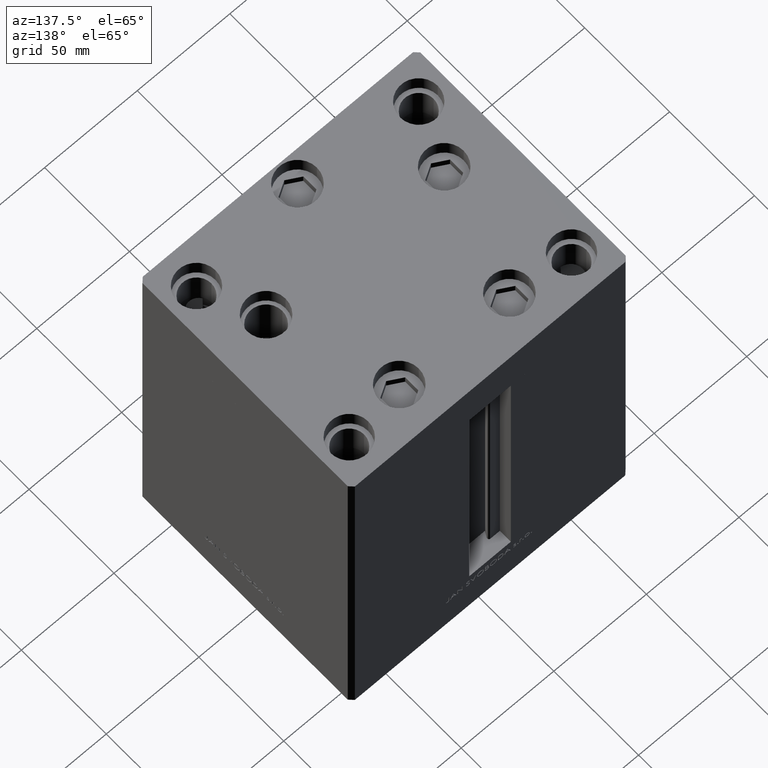
[diagram: clean part render]
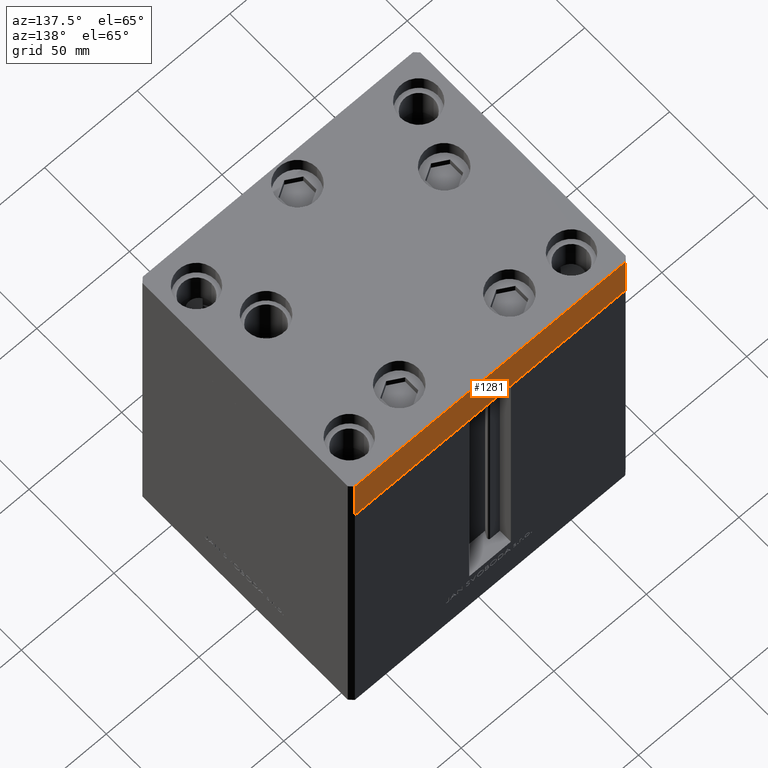
[diagram: same view with one face highlighted and labeled with its STEP entity id]
A machine part, auxiliary view. The second image highlights one B-rep face of the part: STEP entity #1281.
In plain terms, the highlighted planar face has unit normal (-0, 1, 0).
Its self-contained STEP definition (entity closure, byte-faithful):
#1053 = CARTESIAN_POINT ( 'NONE',  ( 72.99999999999992895, 62.50000000000001421, -27.00000000000000000 ) ) ;
#1281 = ADVANCED_FACE ( 'NONE', ( #39674 ), #30789, .T. ) ;
#1303 = DIRECTION ( 'NONE',  ( 0.000000000000000000, 0.000000000000000000, 1.000000000000000000 ) ) ;
#2595 = EDGE_CURVE ( 'NONE', #49244, #8153, #22232, .T. ) ;
#4166 = EDGE_CURVE ( 'NONE', #43103, #49244, #25448, .T. ) ;
#5964 = ORIENTED_EDGE ( 'NONE', *, *, #6052, .T. ) ;
#6052 = EDGE_CURVE ( 'NONE', #43103, #25090, #44548, .T. ) ;
#8153 = VERTEX_POINT ( 'NONE', #11917 ) ;
#11917 = CARTESIAN_POINT ( 'NONE',  ( -73.00000000000001421, 62.49999999999998579, 0.000000000000000000 ) ) ;
#13310 = CARTESIAN_POINT ( 'NONE',  ( 72.99999999999992895, 62.50000000000001421, 0.000000000000000000 ) ) ;
#13758 = DIRECTION ( 'NONE',  ( -1.000000000000000000, -1.901066822988282689E-16, 0.000000000000000000 ) ) ;
#17351 = CARTESIAN_POINT ( 'NONE',  ( -73.00000000000001421, 62.49999999999998579, -27.00000000000000000 ) ) ;
#18563 = ORIENTED_EDGE ( 'NONE', *, *, #2595, .F. ) ;
#18660 = CARTESIAN_POINT ( 'NONE',  ( 72.99999999999992895, 62.50000000000001421, 0.000000000000000000 ) ) ;
#19846 = CARTESIAN_POINT ( 'NONE',  ( 72.99999999999992895, 62.50000000000001421, -27.00000000000000000 ) ) ;
#20919 = CARTESIAN_POINT ( 'NONE',  ( 72.99999999999992895, 62.50000000000001421, -27.00000000000000000 ) ) ;
#21473 = DIRECTION ( 'NONE',  ( -1.000000000000000000, -1.901066822988282689E-16, 0.000000000000000000 ) ) ;
#22232 = LINE ( 'NONE', #18660, #44364 ) ;
#23599 = ORIENTED_EDGE ( 'NONE', *, *, #4166, .F. ) ;
#24907 = ORIENTED_EDGE ( 'NONE', *, *, #42533, .T. ) ;
#25090 = VERTEX_POINT ( 'NONE', #17351 ) ;
#25448 = LINE ( 'NONE', #1053, #47653 ) ;
#25666 = AXIS2_PLACEMENT_3D ( 'NONE', #19846, #27985, #43483 ) ;
#27985 = DIRECTION ( 'NONE',  ( -1.901066822988282936E-16, 1.000000000000000000, 0.000000000000000000 ) ) ;
#30789 = PLANE ( 'NONE',  #25666 ) ;
#31524 = LINE ( 'NONE', #47747, #35628 ) ;
#35628 = VECTOR ( 'NONE', #39643, 1000.000000000000000 ) ;
#38967 = CARTESIAN_POINT ( 'NONE',  ( 72.99999999999992895, 62.50000000000001421, -27.00000000000000000 ) ) ;
#39643 = DIRECTION ( 'NONE',  ( 0.000000000000000000, 0.000000000000000000, 1.000000000000000000 ) ) ;
#39674 = FACE_OUTER_BOUND ( 'NONE', #46612, .T. ) ;
#42533 = EDGE_CURVE ( 'NONE', #25090, #8153, #31524, .T. ) ;
#43103 = VERTEX_POINT ( 'NONE', #38967 ) ;
#43483 = DIRECTION ( 'NONE',  ( -1.000000000000000000, -1.901066822988282936E-16, 0.000000000000000000 ) ) ;
#44364 = VECTOR ( 'NONE', #21473, 1000.000000000000000 ) ;
#44548 = LINE ( 'NONE', #20919, #46936 ) ;
#46612 = EDGE_LOOP ( 'NONE', ( #18563, #23599, #5964, #24907 ) ) ;
#46936 = VECTOR ( 'NONE', #13758, 1000.000000000000000 ) ;
#47653 = VECTOR ( 'NONE', #1303, 1000.000000000000000 ) ;
#47747 = CARTESIAN_POINT ( 'NONE',  ( -73.00000000000001421, 62.49999999999998579, -27.00000000000000000 ) ) ;
#49244 = VERTEX_POINT ( 'NONE', #13310 ) ;